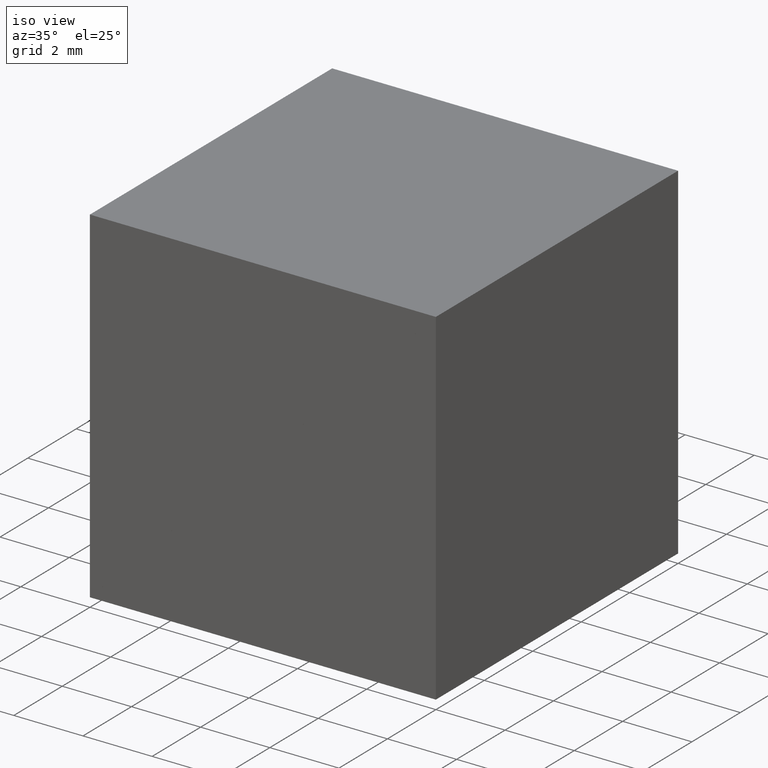
[diagram: clean part render]
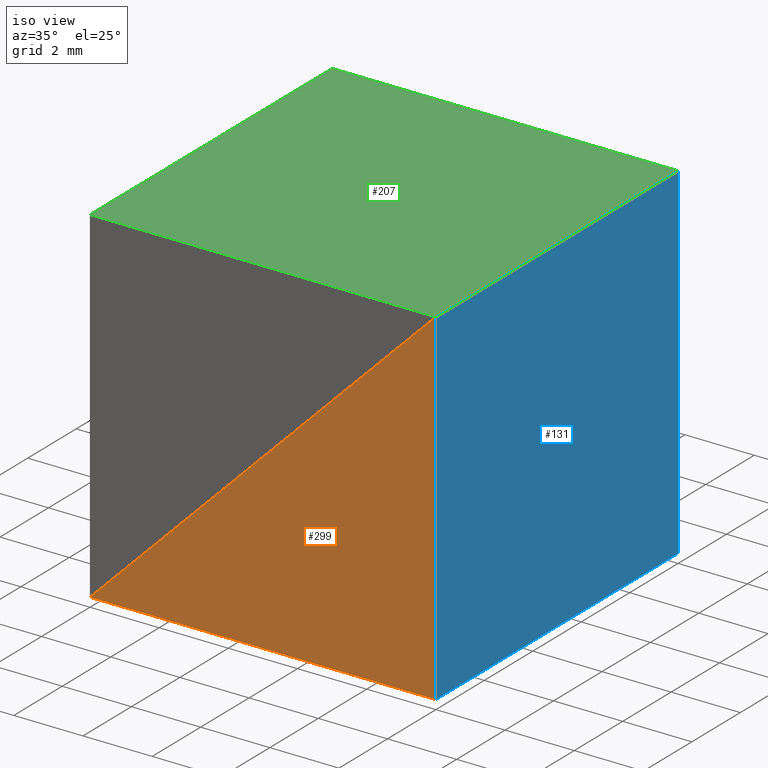
[diagram: same view with three faces highlighted in distinct colors, each labeled with its STEP entity id]
A machine part, iso view with three faces highlighted in distinct colors.
Their STEP definitions:

[orange] entity #299 — the highlighted planar face has unit normal (-0, 1, 0).
#11 = ORIENTED_EDGE ( 'NONE', *, *, #94, .F. ) ;
#22 = DIRECTION ( 'NONE',  ( 0.0000000000000000000, 0.0000000000000000000, -1.000000000000000000 ) ) ;
#33 = LINE ( 'NONE', #182, #37 ) ;
#37 = VECTOR ( 'NONE', #22, 1000.000000000000000 ) ;
#47 = DIRECTION ( 'NONE',  ( 0.7071067811865476800, 0.0000000000000000000, 0.7071067811865474600 ) ) ;
#52 = LINE ( 'NONE', #87, #179 ) ;
#56 = VERTEX_POINT ( 'NONE', #142 ) ;
#87 = CARTESIAN_POINT ( 'NONE',  ( 0.0000000000000000000, 0.0000000000000000000, -10.00000000000000000 ) ) ;
#94 = EDGE_CURVE ( 'NONE', #296, #188, #210, .T. ) ;
#96 = CARTESIAN_POINT ( 'NONE',  ( -10.00000000000000000, 0.0000000000000000000, -9.999999999999996400 ) ) ;
#97 = DIRECTION ( 'NONE',  ( 0.0000000000000000000, -0.0000000000000000000, 1.000000000000000000 ) ) ;
#98 = AXIS2_PLACEMENT_3D ( 'NONE', #124, #273, #97 ) ;
#124 = CARTESIAN_POINT ( 'NONE',  ( 0.0000000000000000000, 0.0000000000000000000, 0.0000000000000000000 ) ) ;
#128 = ORIENTED_EDGE ( 'NONE', *, *, #165, .F. ) ;
#136 = VECTOR ( 'NONE', #47, 1000.000000000000000 ) ;
#142 = CARTESIAN_POINT ( 'NONE',  ( 0.0000000000000000000, 0.0000000000000000000, -10.00000000000000000 ) ) ;
#165 = EDGE_CURVE ( 'NONE', #56, #296, #52, .T. ) ;
#179 = VECTOR ( 'NONE', #236, 1000.000000000000000 ) ;
#182 = CARTESIAN_POINT ( 'NONE',  ( 0.0000000000000000000, 0.0000000000000000000, 0.0000000000000000000 ) ) ;
#188 = VERTEX_POINT ( 'NONE', #259 ) ;
#206 = ORIENTED_EDGE ( 'NONE', *, *, #258, .F. ) ;
#210 = LINE ( 'NONE', #96, #136 ) ;
#230 = FACE_OUTER_BOUND ( 'NONE', #271, .T. ) ;
#236 = DIRECTION ( 'NONE',  ( -1.000000000000000000, 0.0000000000000000000, 3.469446951953614200E-016 ) ) ;
#258 = EDGE_CURVE ( 'NONE', #188, #56, #33, .T. ) ;
#259 = CARTESIAN_POINT ( 'NONE',  ( 0.0000000000000000000, 0.0000000000000000000, 0.0000000000000000000 ) ) ;
#271 = EDGE_LOOP ( 'NONE', ( #11, #128, #206 ) ) ;
#273 = DIRECTION ( 'NONE',  ( -0.0000000000000000000, 1.000000000000000000, 0.0000000000000000000 ) ) ;
#279 = CARTESIAN_POINT ( 'NONE',  ( -10.00000000000000000, 0.0000000000000000000, -9.999999999999996400 ) ) ;
#294 = PLANE ( 'NONE',  #98 ) ;
#296 = VERTEX_POINT ( 'NONE', #279 ) ;
#299 = ADVANCED_FACE ( 'NONE', ( #230 ), #294, .F. ) ;

[blue] entity #131 — the highlighted planar face has unit normal (-1, 0, 0).
#7 = DIRECTION ( 'NONE',  ( -0.0000000000000000000, -1.000000000000000000, -0.0000000000000000000 ) ) ;
#18 = LINE ( 'NONE', #146, #126 ) ;
#22 = DIRECTION ( 'NONE',  ( 0.0000000000000000000, 0.0000000000000000000, -1.000000000000000000 ) ) ;
#25 = CARTESIAN_POINT ( 'NONE',  ( 0.0000000000000000000, 10.00000000000000000, -10.00000000000000000 ) ) ;
#33 = LINE ( 'NONE', #182, #37 ) ;
#37 = VECTOR ( 'NONE', #22, 1000.000000000000000 ) ;
#56 = VERTEX_POINT ( 'NONE', #142 ) ;
#58 = ORIENTED_EDGE ( 'NONE', *, *, #258, .T. ) ;
#61 = DIRECTION ( 'NONE',  ( -0.0000000000000000000, -1.000000000000000000, -0.0000000000000000000 ) ) ;
#71 = DIRECTION ( 'NONE',  ( 0.0000000000000000000, 0.0000000000000000000, 1.000000000000000000 ) ) ;
#80 = VERTEX_POINT ( 'NONE', #290 ) ;
#95 = VECTOR ( 'NONE', #61, 1000.000000000000000 ) ;
#113 = PLANE ( 'NONE',  #218 ) ;
#116 = EDGE_CURVE ( 'NONE', #263, #80, #18, .T. ) ;
#118 = ORIENTED_EDGE ( 'NONE', *, *, #127, .T. ) ;
#122 = FACE_OUTER_BOUND ( 'NONE', #260, .T. ) ;
#126 = VECTOR ( 'NONE', #217, 1000.000000000000000 ) ;
#127 = EDGE_CURVE ( 'NONE', #263, #188, #251, .T. ) ;
#131 = ADVANCED_FACE ( 'NONE', ( #122 ), #113, .F. ) ;
#141 = DIRECTION ( 'NONE',  ( -1.000000000000000000, 0.0000000000000000000, 0.0000000000000000000 ) ) ;
#142 = CARTESIAN_POINT ( 'NONE',  ( 0.0000000000000000000, 0.0000000000000000000, -10.00000000000000000 ) ) ;
#146 = CARTESIAN_POINT ( 'NONE',  ( 0.0000000000000000000, 10.00000000000000000, 0.0000000000000000000 ) ) ;
#162 = CARTESIAN_POINT ( 'NONE',  ( 0.0000000000000000000, 10.00000000000000000, 0.0000000000000000000 ) ) ;
#175 = ORIENTED_EDGE ( 'NONE', *, *, #116, .F. ) ;
#180 = ORIENTED_EDGE ( 'NONE', *, *, #219, .F. ) ;
#182 = CARTESIAN_POINT ( 'NONE',  ( 0.0000000000000000000, 0.0000000000000000000, 0.0000000000000000000 ) ) ;
#188 = VERTEX_POINT ( 'NONE', #259 ) ;
#189 = VECTOR ( 'NONE', #7, 1000.000000000000000 ) ;
#192 = CARTESIAN_POINT ( 'NONE',  ( 0.0000000000000000000, 10.00000000000000000, 0.0000000000000000000 ) ) ;
#208 = CARTESIAN_POINT ( 'NONE',  ( 0.0000000000000000000, 10.00000000000000000, 0.0000000000000000000 ) ) ;
#217 = DIRECTION ( 'NONE',  ( 0.0000000000000000000, 0.0000000000000000000, -1.000000000000000000 ) ) ;
#218 = AXIS2_PLACEMENT_3D ( 'NONE', #162, #141, #71 ) ;
#219 = EDGE_CURVE ( 'NONE', #80, #56, #289, .T. ) ;
#251 = LINE ( 'NONE', #192, #189 ) ;
#258 = EDGE_CURVE ( 'NONE', #188, #56, #33, .T. ) ;
#259 = CARTESIAN_POINT ( 'NONE',  ( 0.0000000000000000000, 0.0000000000000000000, 0.0000000000000000000 ) ) ;
#260 = EDGE_LOOP ( 'NONE', ( #58, #180, #175, #118 ) ) ;
#263 = VERTEX_POINT ( 'NONE', #208 ) ;
#289 = LINE ( 'NONE', #25, #95 ) ;
#290 = CARTESIAN_POINT ( 'NONE',  ( 0.0000000000000000000, 10.00000000000000000, -10.00000000000000000 ) ) ;

[green] entity #207 — the highlighted planar face has unit normal (-0, 0, 1).
#1 = DIRECTION ( 'NONE',  ( -0.0000000000000000000, 0.0000000000000000000, 1.000000000000000000 ) ) ;
#2 = EDGE_LOOP ( 'NONE', ( #242, #60, #70, #237 ) ) ;
#36 = AXIS2_PLACEMENT_3D ( 'NONE', #109, #1, #135 ) ;
#46 = CARTESIAN_POINT ( 'NONE',  ( 0.0000000000000000000, 10.00000000000000000, 0.0000000000000000000 ) ) ;
#50 = VERTEX_POINT ( 'NONE', #114 ) ;
#51 = CARTESIAN_POINT ( 'NONE',  ( 0.0000000000000000000, 10.00000000000000000, 0.0000000000000000000 ) ) ;
#60 = ORIENTED_EDGE ( 'NONE', *, *, #107, .F. ) ;
#63 = LINE ( 'NONE', #262, #75 ) ;
#67 = VERTEX_POINT ( 'NONE', #285 ) ;
#70 = ORIENTED_EDGE ( 'NONE', *, *, #134, .T. ) ;
#75 = VECTOR ( 'NONE', #111, 1000.000000000000000 ) ;
#76 = LINE ( 'NONE', #266, #201 ) ;
#79 = EDGE_CURVE ( 'NONE', #50, #125, #76, .T. ) ;
#85 = DIRECTION ( 'NONE',  ( -1.000000000000000000, -0.0000000000000000000, -0.0000000000000000000 ) ) ;
#107 = EDGE_CURVE ( 'NONE', #121, #67, #256, .T. ) ;
#109 = CARTESIAN_POINT ( 'NONE',  ( -10.00000000000000000, 10.00000000000000000, 0.0000000000000000000 ) ) ;
#110 = FACE_OUTER_BOUND ( 'NONE', #2, .T. ) ;
#111 = DIRECTION ( 'NONE',  ( -1.000000000000000000, -0.0000000000000000000, -0.0000000000000000000 ) ) ;
#112 = DIRECTION ( 'NONE',  ( 0.0000000000000000000, -1.000000000000000000, 0.0000000000000000000 ) ) ;
#114 = CARTESIAN_POINT ( 'NONE',  ( -10.00000000000000000, 10.00000000000000000, 0.0000000000000000000 ) ) ;
#121 = VERTEX_POINT ( 'NONE', #46 ) ;
#125 = VERTEX_POINT ( 'NONE', #288 ) ;
#134 = EDGE_CURVE ( 'NONE', #121, #50, #63, .T. ) ;
#135 = DIRECTION ( 'NONE',  ( 1.000000000000000000, 0.0000000000000000000, 0.0000000000000000000 ) ) ;
#157 = PLANE ( 'NONE',  #36 ) ;
#201 = VECTOR ( 'NONE', #112, 1000.000000000000000 ) ;
#205 = VECTOR ( 'NONE', #221, 1000.000000000000000 ) ;
#207 = ADVANCED_FACE ( 'NONE', ( #110 ), #157, .T. ) ;
#216 = EDGE_CURVE ( 'NONE', #67, #125, #226, .T. ) ;
#221 = DIRECTION ( 'NONE',  ( 0.0000000000000000000, -1.000000000000000000, 0.0000000000000000000 ) ) ;
#226 = LINE ( 'NONE', #255, #235 ) ;
#235 = VECTOR ( 'NONE', #85, 1000.000000000000000 ) ;
#237 = ORIENTED_EDGE ( 'NONE', *, *, #79, .T. ) ;
#242 = ORIENTED_EDGE ( 'NONE', *, *, #216, .F. ) ;
#255 = CARTESIAN_POINT ( 'NONE',  ( -10.00000000000000000, 0.0000000000000000000, 0.0000000000000000000 ) ) ;
#256 = LINE ( 'NONE', #51, #205 ) ;
#262 = CARTESIAN_POINT ( 'NONE',  ( -10.00000000000000000, 10.00000000000000000, 0.0000000000000000000 ) ) ;
#266 = CARTESIAN_POINT ( 'NONE',  ( -10.00000000000000000, 10.00000000000000000, 0.0000000000000000000 ) ) ;
#285 = CARTESIAN_POINT ( 'NONE',  ( 0.0000000000000000000, 0.0000000000000000000, 0.0000000000000000000 ) ) ;
#288 = CARTESIAN_POINT ( 'NONE',  ( -10.00000000000000000, 0.0000000000000000000, 0.0000000000000000000 ) ) ;